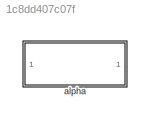
MODEL slx_1c8dd407c07f
KIND library
CONFIG AbsTol = auto
CONFIG EnableMultiTasking = off
CONFIG FixedStep = auto
CONFIG MaxStep = auto
CONFIG MinStep = auto
CONFIG RelTol = 1e-3
CONFIG SampleTimeConstraint = Unconstrained
CONFIG Solver = VariableStepAuto
CONFIG SolverName = VariableStepAuto
CONFIG StartTime = 0.0
CONFIG StopTime = 10.0
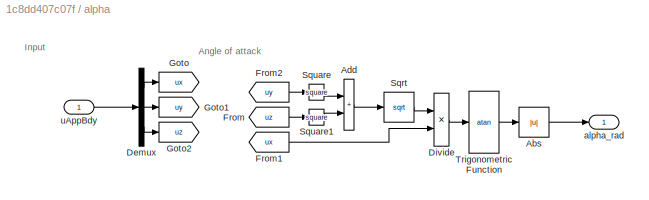
BLOCK [SubSystem] alpha
  MinAlgLoopOccurrences = on
  Ports = [1, 1]
  RequestExecContextInheritance = off
  TreatAsAtomicUnit = on
BLOCK [Abs] alpha/Abs
  SaturateOnIntegerOverflow = off
BLOCK [Sum] alpha/Add
  IconShape = rectangular
  Ports = [2, 1]
BLOCK [Demux] alpha/Demux
  Outputs = 3
  Ports = [1, 3]
BLOCK [Product] alpha/Divide
  Inputs = */
  Ports = [2, 1]
BLOCK [From] alpha/From
  GotoTag = uz
BLOCK [From] alpha/From1
  GotoTag = ux
BLOCK [From] alpha/From2
  GotoTag = uy
BLOCK [Goto] alpha/Goto
  GotoTag = ux
BLOCK [Goto] alpha/Goto1
  GotoTag = uy
BLOCK [Goto] alpha/Goto2
  GotoTag = uz
BLOCK [Sqrt] alpha/Sqrt
BLOCK [Math] alpha/Square
  Operator = square
  Ports = [1, 1]
BLOCK [Math] alpha/Square1
  Operator = square
  Ports = [1, 1]
BLOCK [Trigonometry] alpha/Trigonometric Function
  Operator = atan
  Ports = [1, 1]
BLOCK [Outport] alpha/alpha_rad
  VectorParamsAs1DForOutWhenUnconnected = off
BLOCK [Inport] alpha/uAppBdy
ANNOTATION alpha: Angle of attack
ANNOTATION alpha: Input
LINE alpha/Abs:1 -> alpha/alpha_rad:1
LINE alpha/Add:1 -> alpha/Sqrt:1
LINE alpha/Demux:1 -> alpha/Goto:1
LINE alpha/Demux:2 -> alpha/Goto1:1
LINE alpha/Demux:3 -> alpha/Goto2:1
LINE alpha/Divide:1 -> alpha/Trigonometric Function:1
LINE alpha/From1:1 -> alpha/Divide:2
LINE alpha/From2:1 -> alpha/Square:1
LINE alpha/From:1 -> alpha/Square1:1
LINE alpha/Sqrt:1 -> alpha/Divide:1
LINE alpha/Square1:1 -> alpha/Add:2
LINE alpha/Square:1 -> alpha/Add:1
LINE alpha/Trigonometric Function:1 -> alpha/Abs:1
LINE alpha/uAppBdy:1 -> alpha/Demux:1
